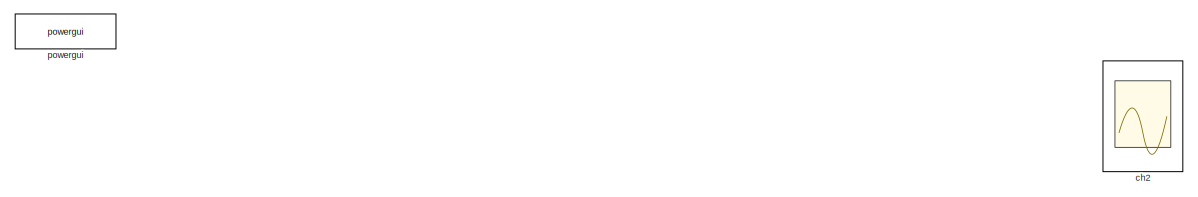
[diagram: root canvas - part 1/2, top center region]
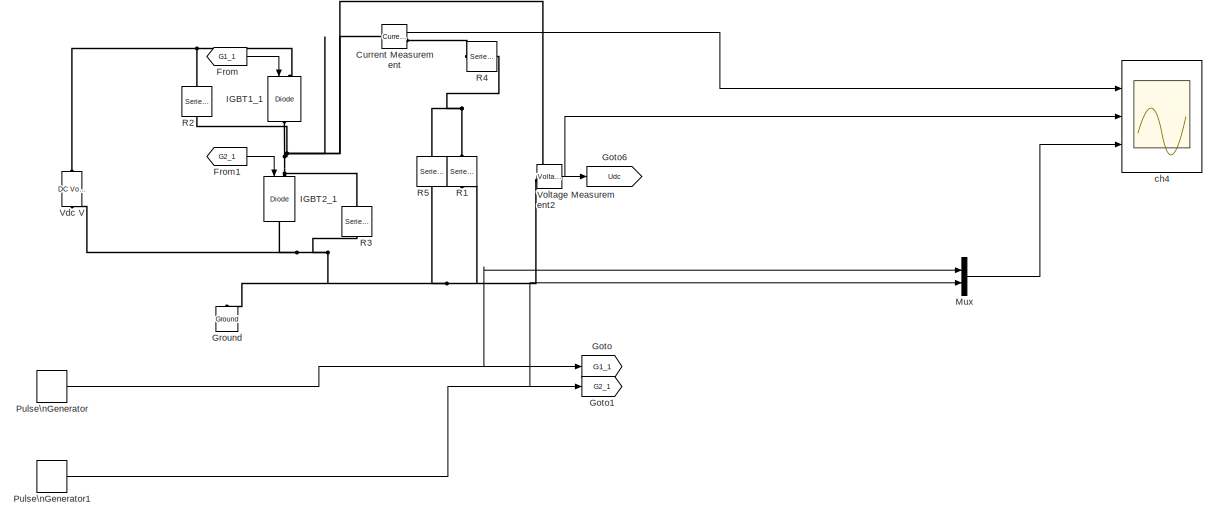
[diagram: root canvas - part 2/2, bottom center region]
MODEL a_Square_RL_Response
KIND model
CONFIG InitFcn = Frate =1500;\nfcut=20;\nfPIL=4;\nKp=2*pi*fcut;\nKi=2*pi*fPIL*Kp;
CONFIG PreLoadFcn = \n
BLOCK [Reference] Current Measurement  REF=powerlib/Measurements/Current Measurement
  OutputType = Complex
  PSBequivalent = 0
  PhasorSimulation = off
  Ports = [0, 1, 0, 0, 0, 1, 1]
  SID = 4636
  SourceBlock = powerlib/Measurements/Current Measurement
  SourceType = Current Measurement
  UserDataPersistent = on
BLOCK [From] From
  CloseFcn = tagdialog Close
  GotoTag = G1_1
  SID = 4649
BLOCK [From] From1
  CloseFcn = tagdialog Close
  GotoTag = G2_1
  SID = 4650
BLOCK [Goto] Goto
  GotoTag = G1_1
  SID = 4659
BLOCK [Goto] Goto1
  GotoTag = G2_1
  SID = 4660
BLOCK [Goto] Goto6
  GotoTag = Udc
  SID = 4637
  TagVisibility = global
BLOCK [Reference] Ground  REF=powerlib/Elements/Ground
  LConnTagsString = a
  Ports = [0, 0, 0, 0, 0, 1]
  SID = 4643
  SourceBlock = powerlib/Elements/Ground
  SourceType = Ground
BLOCK [Reference] IGBT1_1  REF=powerlib/Power\nElectronics/IGBT//Diode
  Cs = 22E-9
  Measurements = off
  Ports = [1, 0, 0, 0, 0, 1, 1]
  Ron = 1e-3
  Rs = 1e5
  SID = 4653
  SourceBlock = powerlib/Power\nElectronics/IGBT//Diode
  SourceType = IGBT/Diode
BLOCK [Reference] IGBT2_1  REF=powerlib/Power\nElectronics/IGBT//Diode
  Cs = 22E-9
  Measurements = off
  Ports = [1, 0, 0, 0, 0, 1, 1]
  Ron = 1e-3
  Rs = 1e5
  SID = 4654
  SourceBlock = powerlib/Power\nElectronics/IGBT//Diode
  SourceType = IGBT/Diode
BLOCK [Mux] Mux
  DisplayOption = bar
  Inputs = 2
  Ports = [2, 1]
  SID = 4665
BLOCK [DiscretePulseGenerator] Pulse\nGenerator
  Amplitude = 200
  Period = 0.25e-3
  Ports = [0, 1]
  PulseType = Time based
  SID = 4644
BLOCK [DiscretePulseGenerator] Pulse\nGenerator1
  Amplitude = 400
  Period = 0.25e-3
  PhaseDelay = 1.5*2.5e-6
  Ports = [0, 1]
  PulseType = Time based
  PulseWidth = 98
  SID = 4662
BLOCK [Reference] R1  REF=powerlib/Elements/Series RLC Branch
  AttributesFormatString = \\n
  BranchType = RL
  Capacitance = 1.0
  Inductance = 0.14e-2
  InitialCurrent = 0
  InitialVoltage = 0
  LConnTagsString = __new0
  Measurements = None
  Ports = [0, 0, 0, 0, 0, 1, 1]
  RConnTagsString = __new0
  Resistance = 0.1
  SID = 4638
  SetiL0 = off
  Setx0 = off
  SourceBlock = powerlib/Elements/Series RLC Branch
  SourceType = Series RLC Branch
BLOCK [Reference] R2  REF=powerlib/Elements/Series RLC Branch
  AttributesFormatString = \\n
  BranchType = RC
  Capacitance = 10e-9
  Inductance = 0.14e-2
  InitialCurrent = 0
  InitialVoltage = 0
  LConnTagsString = __new0
  Measurements = None
  Ports = [0, 0, 0, 0, 0, 1, 1]
  RConnTagsString = __new0
  Resistance = 1
  SID = 4668
  SetiL0 = off
  Setx0 = off
  SourceBlock = powerlib/Elements/Series RLC Branch
  SourceType = Series RLC Branch
BLOCK [Reference] R3  REF=powerlib/Elements/Series RLC Branch
  AttributesFormatString = \\n
  BranchType = RC
  Capacitance = 10e-9
  Inductance = 0.14e-2
  InitialCurrent = 0
  InitialVoltage = 0
  LConnTagsString = __new0
  Measurements = None
  Ports = [0, 0, 0, 0, 0, 1, 1]
  RConnTagsString = __new0
  Resistance = 1
  SID = 4667
  SetiL0 = off
  Setx0 = off
  SourceBlock = powerlib/Elements/Series RLC Branch
  SourceType = Series RLC Branch
BLOCK [Reference] R4  REF=powerlib/Elements/Series RLC Branch
  AttributesFormatString = \\n
  BranchType = RL
  Capacitance = 1.0
  Inductance = 1e-6
  InitialCurrent = 0
  InitialVoltage = 0
  LConnTagsString = __new0
  Measurements = None
  Ports = [0, 0, 0, 0, 0, 1, 1]
  RConnTagsString = __new0
  Resistance = 0.1
  SID = 4669
  SetiL0 = off
  Setx0 = off
  SourceBlock = powerlib/Elements/Series RLC Branch
  SourceType = Series RLC Branch
BLOCK [Reference] R5  REF=powerlib/Elements/Series RLC Branch
  AttributesFormatString = \\n
  BranchType = RC
  Capacitance = 30e-9
  Inductance = 0.14e-2
  InitialCurrent = 0
  InitialVoltage = 0
  LConnTagsString = __new0
  Measurements = None
  Ports = [0, 0, 0, 0, 0, 1, 1]
  RConnTagsString = __new0
  Resistance = 0.5
  SID = 4670
  SetiL0 = off
  Setx0 = off
  SourceBlock = powerlib/Elements/Series RLC Branch
  SourceType = Series RLC Branch
BLOCK [Reference] Vdc  V  REF=powerlib/Electrical\nSources/DC Voltage Source
  Amplitude = 600
  AttributesFormatString = \\n
  Description = source block
  Measurements = None
  Ports = [0, 0, 0, 0, 0, 1, 1]
  SID = 4655
  SourceBlock = powerlib/Electrical\nSources/DC Voltage Source
  SourceType = DC Voltage Source
BLOCK [Reference] Voltage Measurement2  REF=powerlib/Measurements/Voltage Measurement
  OutputType = Complex
  PSBequivalent = 0
  PhasorSimulation = off
  Ports = [0, 1, 0, 0, 0, 2]
  SID = 4639
  SourceBlock = powerlib/Measurements/Voltage Measurement
  SourceType = Voltage Measurement
BLOCK [Scope] ch2
  NumInputPorts = 2
  Ports = [2]
  SID = 4603
  ScopeSpecificationString = Simulink.scopes.TimeScopeBlockCfg('CurrentConfiguration', extmgr.ConfigurationSet(extmgr.Configuration('Core','General UI',true,'FigureColor',[1 1 1]),extmgr.Configuration('Core','Source UI',true),extmgr.Configuration('Sources','WiredSimulink',true,'DataLoggingVariableName','VIData1','DataLoggingSaveFormat','StructureWithTime','SampleTime','0.00001','DataLoggingDecimation','1','DataLoggingDecimate...<+3976ch>
BLOCK [Scope] ch4
  NumInputPorts = 3
  Ports = [3]
  SID = 4646
  ScopeSpecificationString = Simulink.scopes.TimeScopeBlockCfg('CurrentConfiguration', extmgr.ConfigurationSet(extmgr.Configuration('Core','General UI',true,'FigureColor',[1 1 1]),extmgr.Configuration('Core','Source UI',true),extmgr.Configuration('Sources','WiredSimulink',true,'DataLoggingVariableName','ScopeData1','DataLoggingSaveFormat','StructureWithTime','SampleTime','0.00000001','DataLoggingDecimation','1','DataLoggingDe...<+4064ch>
BLOCK [Reference] powergui  REF=powerlib/powergui
  DisableRonSwitches = off
  DisableSnubberDevices = off
  DisableVfSwitches = off
  DisplayEquations = off
  DisplayStyle = 1
  EnableUseOfTLC = off
  ErrMax = 1e-4
  ExternalGateDelay = off
  Frange = [0:2:500]
  FreqAxis = on
  FunctionMessages = off
  HookPort = off
  Interpol = off
  Iterations = 50
  MaxFrequency = 500
  Pbase = 10e6
  Ports = []
  Priority = 2
  ResistiveCurrentMeasurement = off
  RestoreLinks = warning
  RmsSteady = 1
  SID = 145
  SPID = off
  SampleTime = 1/4000/100
  ShowGrid = off
  SolverType = Tustin
  SourceBlock = powerlib/powergui
  SourceType = PSB option menu block
  StartTime = 0
  SwTol = 0
  Ts = 0
  UnitsV = kV
  UnitsW = MW
  Xlog = off
  Ylog = off
  ZoomFFT = off
  buscounter = 0
  cycles = 10
  display = off
  echomessages = off
  frequency = 60
  frequencyindice = 0
  frequencyindicesteady = 1
  fundamental = 50
  methode = off
  save = off
  structure = ScopeData10
  variable = ZData
  x0status = blocks
LINE Current Measurement:1 -> ch4:1
LINE From1:1 -> IGBT2_1:1
LINE From:1 -> IGBT1_1:1
LINE Mux:1 -> ch4:3
NET Pulse\nGenerator1:1 -> Goto1:1, Mux:2
NET Pulse\nGenerator:1 -> Goto:1, Mux:1
NET Voltage Measurement2:1 -> Goto6:1, ch4:2
PNET net1: Current Measurement:LConn1 -- IGBT1_1:RConn1 -- IGBT2_1:LConn1 -- R2:RConn1 -- R3:LConn1 -- Voltage Measurement2:LConn1
PLINE Current Measurement:RConn1 -- R4:RConn1
PNET net2: Ground:LConn1 -- IGBT2_1:RConn1 -- R1:RConn1 -- R3:RConn1 -- R5:RConn1 -- Vdc  V:LConn1 -- Voltage Measurement2:LConn2
PNET net3: IGBT1_1:LConn1 -- R2:LConn1 -- Vdc  V:RConn1
PNET net4: R1:LConn1 -- R4:LConn1 -- R5:LConn1
note: NET lines group one-source signal fan-out (src -> all destinations, sorted); 1:1 wires keep LINE; PNET lines group multi-terminal physical nets as a canonical sorted terminal list (undirected conserving connections); 2-terminal nets keep the pairwise PLINE form
